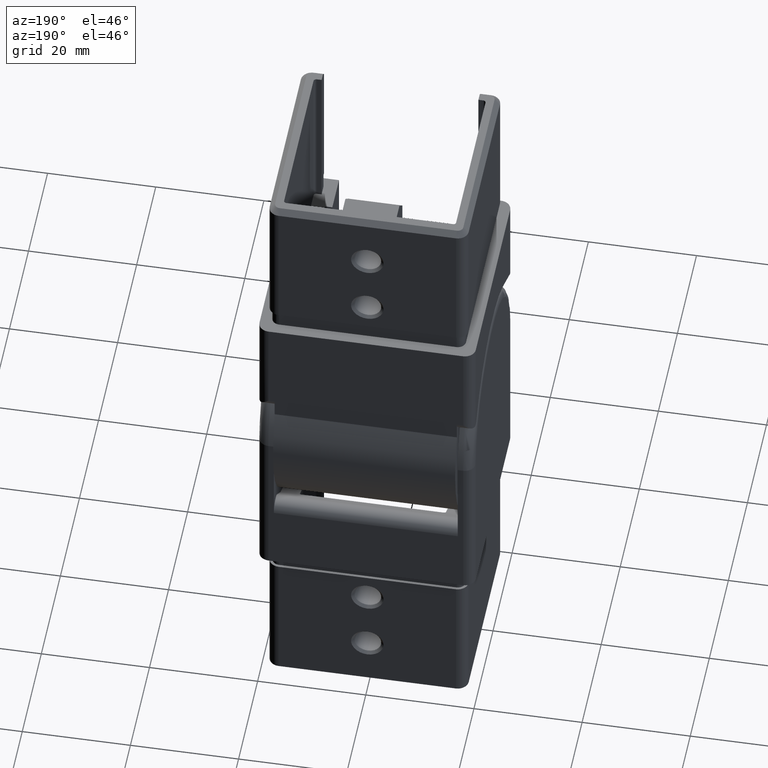
[diagram: clean part render]
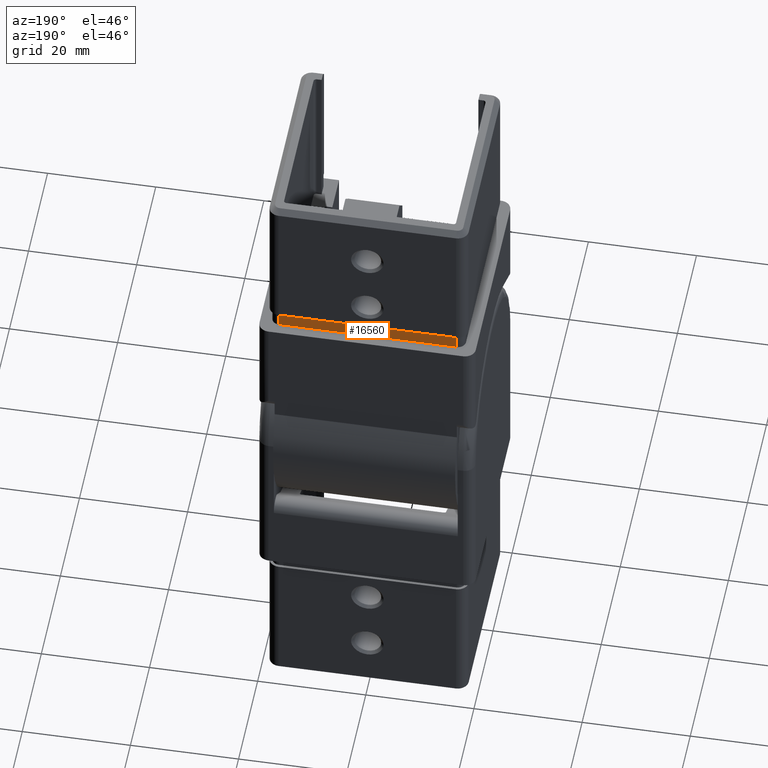
[diagram: same view with one face highlighted and labeled with its STEP entity id]
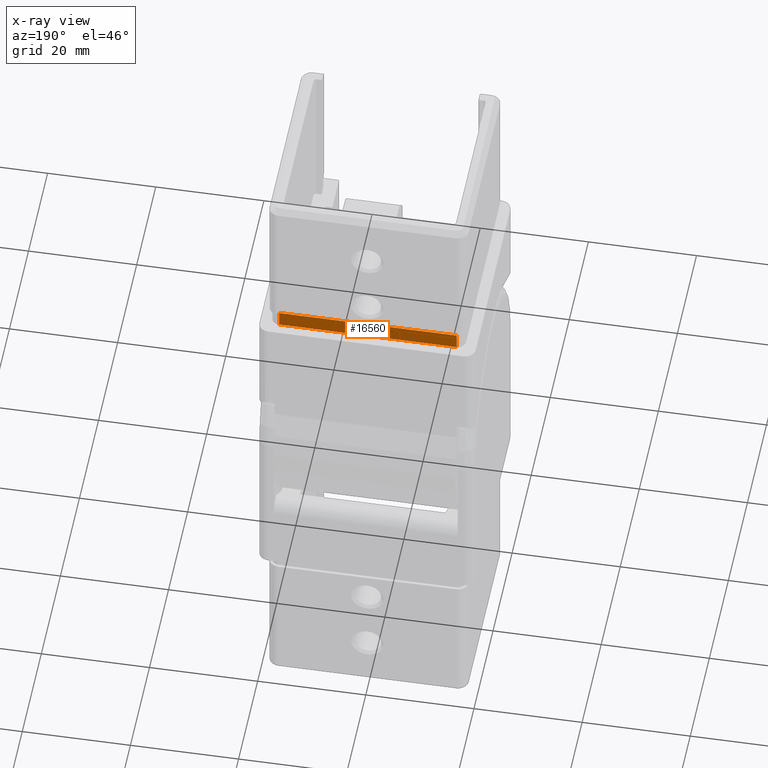
[diagram: x-ray of the same camera — body ghosted, the highlighted face saturated]
A machine part, auxiliary view. The second image highlights one B-rep face of the part: STEP entity #16560.
The next image is the same camera in x-ray: the body ghosted, the highlighted face saturated — about 0% of this face is hidden behind the body in this view.
In plain terms, the highlighted planar face has unit normal (0, 1, 0).
Its self-contained STEP definition (entity closure, byte-faithful):
#332 = CARTESIAN_POINT ( 'NONE',  ( -16.39999999999999100, 17.89999999999998800, 3.000000000000002700 ) ) ;
#604 = AXIS2_PLACEMENT_3D ( 'NONE', #22913, #1295, #1464 ) ;
#806 = EDGE_CURVE ( 'NONE', #10775, #12026, #22256, .T. ) ;
#916 = CARTESIAN_POINT ( 'NONE',  ( 16.40000000000002000, 17.89999999999998400, 3.469446951953614200E-015 ) ) ;
#1295 = DIRECTION ( 'NONE',  ( 1.057758217059028400E-016, 1.000000000000000000, -0.0000000000000000000 ) ) ;
#1464 = DIRECTION ( 'NONE',  ( -1.000000000000000000, 1.057758217059028400E-016, 0.0000000000000000000 ) ) ;
#1660 = CARTESIAN_POINT ( 'NONE',  ( -16.39999999999999100, 17.89999999999998800, 3.000000000000002700 ) ) ;
#2631 = VECTOR ( 'NONE', #20974, 1000.000000000000000 ) ;
#2646 = EDGE_CURVE ( 'NONE', #12320, #11069, #12413, .T. ) ;
#2920 = LINE ( 'NONE', #1660, #2631 ) ;
#4009 = ORIENTED_EDGE ( 'NONE', *, *, #806, .T. ) ;
#4147 = FACE_OUTER_BOUND ( 'NONE', #9012, .T. ) ;
#5839 = CARTESIAN_POINT ( 'NONE',  ( 16.40000000000002000, 17.89999999999998400, 3.000000000000002700 ) ) ;
#7429 = CARTESIAN_POINT ( 'NONE',  ( -16.39999999999999100, 17.89999999999998800, 3.469446951953614200E-015 ) ) ;
#8865 = ORIENTED_EDGE ( 'NONE', *, *, #16949, .T. ) ;
#9012 = EDGE_LOOP ( 'NONE', ( #4009, #8865, #16738, #16322 ) ) ;
#9065 = VECTOR ( 'NONE', #15661, 1000.000000000000000 ) ;
#10775 = VERTEX_POINT ( 'NONE', #21718 ) ;
#11069 = VERTEX_POINT ( 'NONE', #20510 ) ;
#11146 = EDGE_CURVE ( 'NONE', #10775, #12320, #17326, .T. ) ;
#12026 = VERTEX_POINT ( 'NONE', #13448 ) ;
#12320 = VERTEX_POINT ( 'NONE', #916 ) ;
#12413 = LINE ( 'NONE', #5839, #9065 ) ;
#13448 = CARTESIAN_POINT ( 'NONE',  ( -16.39999999999999100, 17.89999999999998800, 3.000000000000002700 ) ) ;
#15661 = DIRECTION ( 'NONE',  ( 0.0000000000000000000, 0.0000000000000000000, 1.000000000000000000 ) ) ;
#16322 = ORIENTED_EDGE ( 'NONE', *, *, #11146, .F. ) ;
#16560 = ADVANCED_FACE ( 'NONE', ( #4147 ), #22837, .T. ) ;
#16738 = ORIENTED_EDGE ( 'NONE', *, *, #2646, .F. ) ;
#16949 = EDGE_CURVE ( 'NONE', #12026, #11069, #2920, .T. ) ;
#17069 = VECTOR ( 'NONE', #18064, 1000.000000000000000 ) ;
#17326 = LINE ( 'NONE', #7429, #19472 ) ;
#18064 = DIRECTION ( 'NONE',  ( 0.0000000000000000000, 0.0000000000000000000, 1.000000000000000000 ) ) ;
#19472 = VECTOR ( 'NONE', #21001, 1000.000000000000000 ) ;
#20510 = CARTESIAN_POINT ( 'NONE',  ( 16.40000000000002000, 17.89999999999998400, 3.000000000000002700 ) ) ;
#20974 = DIRECTION ( 'NONE',  ( 1.000000000000000000, -1.057758217059028400E-016, 0.0000000000000000000 ) ) ;
#21001 = DIRECTION ( 'NONE',  ( 1.000000000000000000, -1.057758217059028400E-016, 0.0000000000000000000 ) ) ;
#21718 = CARTESIAN_POINT ( 'NONE',  ( -16.39999999999999100, 17.89999999999998800, 3.469446951953614200E-015 ) ) ;
#22256 = LINE ( 'NONE', #332, #17069 ) ;
#22837 = PLANE ( 'NONE',  #604 ) ;
#22913 = CARTESIAN_POINT ( 'NONE',  ( -16.39999999999999100, 17.89999999999998800, 3.000000000000002700 ) ) ;